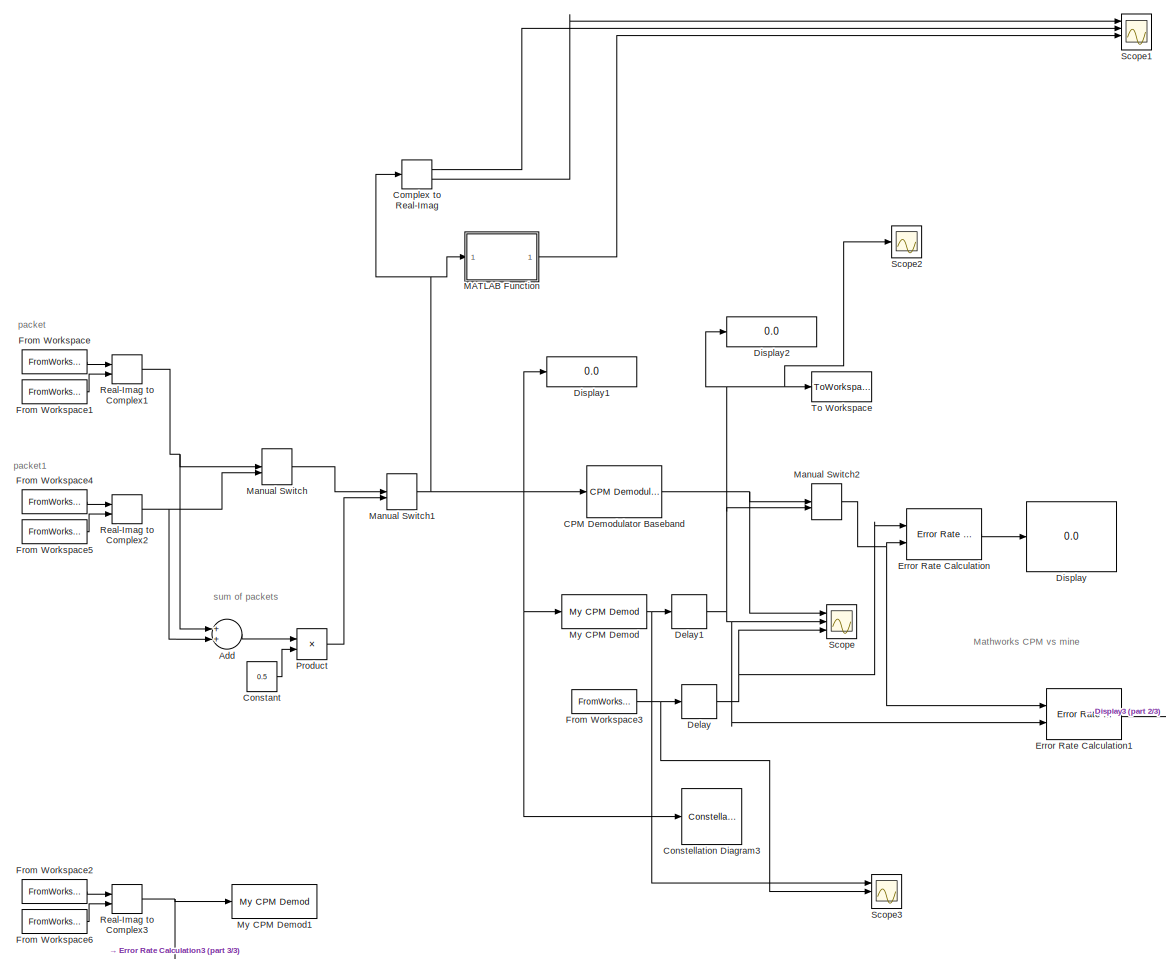
[diagram: root canvas - part 1/3, full width, top band]
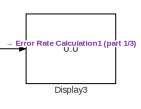
[diagram: root canvas - part 2/3, middle right region]
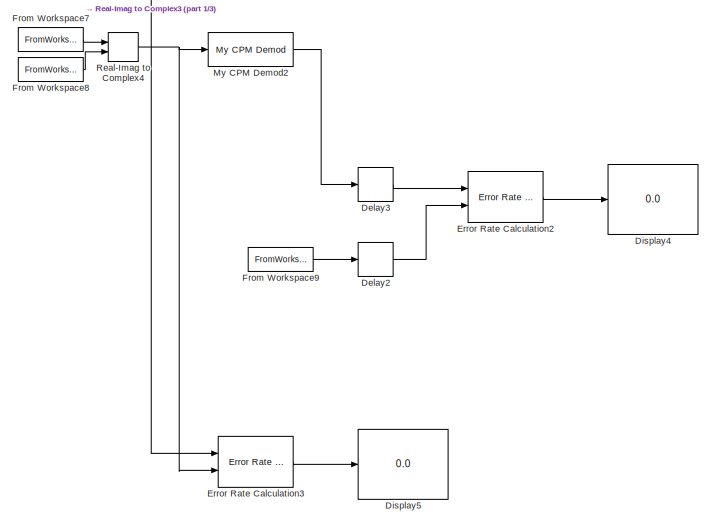
[diagram: root canvas - part 3/3, bottom left region]
MODEL slx_6c8acb5a6a5f
KIND model
BLOCK [Sum] Add
  InputSameDT = off
  OutDataTypeStr = Inherit: Inherit via internal rule
  Ports = [2, 1]
  SaturateOnIntegerOverflow = off
BLOCK [Reference] CPM Demodulator Baseband  REF=commdigbbndcpm2/CPM
Demodulator
Baseband
  BT = 0.3
  Mnum = 2
  Ports = [1, 1]
  RateOptions = Allow multirate processing
  SourceBlock = commdigbbndcpm2/CPM\nDemodulator\nBaseband
  SourceType = CPM Demodulator Baseband
  UserDataPersistent = on
  mainLobePulseLength = 1
  mappingType = Binary
  modIdx = 2
  outDType = double
  outputType = Integer
  phaseOffset = 0
  preHistory = 1
  pulseLength = 1
  pulseShape = Rectangular
  rollOff = 0.2
  samplesPerSymbol = 10
  traceBack = 16
BLOCK [ComplexToRealImag] Complex to Real-Imag
  Commented = on
  Ports = [1, 2]
BLOCK [Constant] Constant
  Value = 0.5
BLOCK [ConstellationDiagram] Constellation Diagram3
  Ports = [1]
  ScopeSpecificationString = comm.scopes.ConstellationDiagramBlockCfg('CurrentConfiguration', extmgr.ConfigurationSet(extmgr.Configuration('Core','General UI',true),extmgr.Configuration('Core','Source UI',true),extmgr.Configuration('Sources','WiredSimulink',true),extmgr.Configuration('Sources','Simulink',false),extmgr.Configuration('Sources','File',false),extmgr.Configuration('Sources','Workspace',false),extmgr.Configuration(...<+1736ch>
BLOCK [Delay] Delay
  DelayLength = 179
  InitialCondition = 0
  InputPortMap = u0
  Ports = [1, 1]
BLOCK [Delay] Delay1
  DelayLength = 17
  InitialCondition = 0
  InputPortMap = u0
  Ports = [1, 1]
BLOCK [Delay] Delay2
  Commented = on
  DelayLength = 179
  InitialCondition = 0
  InputPortMap = u0
  Ports = [1, 1]
BLOCK [Delay] Delay3
  Commented = on
  DelayLength = 17
  InitialCondition = 0
  InputPortMap = u0
  Ports = [1, 1]
BLOCK [Display] Display
  Decimation = 1
  Ports = [1]
BLOCK [Display] Display1
  Decimation = 1
  Ports = [1]
BLOCK [Display] Display2
  Decimation = 1
  Ports = [1]
BLOCK [Display] Display3
  Decimation = 1
  Ports = [1]
BLOCK [Display] Display4
  Commented = on
  Decimation = 1
  Ports = [1]
BLOCK [Display] Display5
  Commented = on
  Decimation = 1
  Ports = [1]
BLOCK [Reference] Error Rate Calculation  REF=commsink2/Error Rate
Calculation
  N = 0
  PMode = Port
  Ports = [2, 1]
  RsMode2 = off
  SourceBlock = commsink2/Error Rate\nCalculation
  SourceType = Error Rate Calculation
  WsName = ErrorVec
  cp_mode = Entire frame
  maxBits = 1e6
  numErr = 100
  st_delay = 180
  stop = off
  subframe = []
BLOCK [Reference] Error Rate Calculation1  REF=commsink2/Error Rate
Calculation
  N = 0
  PMode = Port
  Ports = [2, 1]
  RsMode2 = off
  SourceBlock = commsink2/Error Rate\nCalculation
  SourceType = Error Rate Calculation
  WsName = ErrorVec
  cp_mode = Entire frame
  maxBits = 1e6
  numErr = 100
  st_delay = 180
  stop = off
  subframe = []
BLOCK [Reference] Error Rate Calculation2  REF=commsink2/Error Rate
Calculation
  Commented = on
  N = 0
  PMode = Port
  Ports = [2, 1]
  RsMode2 = off
  SourceBlock = commsink2/Error Rate\nCalculation
  SourceType = Error Rate Calculation
  WsName = ErrorVec
  cp_mode = Entire frame
  maxBits = 1e6
  numErr = 100
  st_delay = 180
  stop = off
  subframe = []
BLOCK [Reference] Error Rate Calculation3  REF=commsink2/Error Rate
Calculation
  Commented = on
  N = 0
  PMode = Port
  Ports = [2, 1]
  RsMode2 = off
  SourceBlock = commsink2/Error Rate\nCalculation
  SourceType = Error Rate Calculation
  WsName = ErrorVec
  cp_mode = Entire frame
  maxBits = 1e6
  numErr = 100
  st_delay = 180
  stop = off
  subframe = []
BLOCK [FromWorkspace] From Workspace
  Interpolate = off
  OutDataTypeStr = double
  OutputAfterFinalValue = Setting to zero
  SampleTime = 1/(10000*10)
  VariableName = [packetDataTimeValues real(packetData)]
BLOCK [FromWorkspace] From Workspace1
  Interpolate = off
  OutDataTypeStr = double
  OutputAfterFinalValue = Setting to zero
  SampleTime = 1/(10000*10)
  VariableName = [packetDataTimeValues imag(packetData)]
BLOCK [FromWorkspace] From Workspace2
  Commented = on
  Interpolate = off
  OutDataTypeStr = double
  OutputAfterFinalValue = Setting to zero
  SampleTime = 1/(10000*10)
  VariableName = [packetDataTimeValues real(packetDataFirstGo)]
BLOCK [FromWorkspace] From Workspace3
  Interpolate = off
  OutDataTypeStr = double
  OutputAfterFinalValue = Setting to zero
  SampleTime = 1/(10000*10)
  VariableName = [packetDataTimeValues originalDataPacked]
BLOCK [FromWorkspace] From Workspace4
  Interpolate = off
  OutDataTypeStr = double
  OutputAfterFinalValue = Setting to zero
  SampleTime = 1/(10000*10)
  VariableName = [packetDataTimeValues real(packetData1)]
BLOCK [FromWorkspace] From Workspace5
  Interpolate = off
  OutDataTypeStr = double
  OutputAfterFinalValue = Setting to zero
  SampleTime = 1/(10000*10)
  VariableName = [packetDataTimeValues imag(packetData1)]
BLOCK [FromWorkspace] From Workspace6
  Commented = on
  Interpolate = off
  OutDataTypeStr = double
  OutputAfterFinalValue = Setting to zero
  SampleTime = 1/(10000*10)
  VariableName = [packetDataTimeValues imag(packetDataFirstGo)]
BLOCK [FromWorkspace] From Workspace7
  Commented = on
  Interpolate = off
  OutDataTypeStr = double
  OutputAfterFinalValue = Setting to zero
  SampleTime = 1/(10000*10)
  VariableName = [packetDataTimeValues real(packetDataRotated)]
BLOCK [FromWorkspace] From Workspace8
  Commented = on
  Interpolate = off
  OutDataTypeStr = double
  OutputAfterFinalValue = Setting to zero
  SampleTime = 1/(10000*10)
  VariableName = [packetDataTimeValues imag(packetDataRotated)]
BLOCK [FromWorkspace] From Workspace9
  Commented = on
  Interpolate = off
  OutDataTypeStr = double
  OutputAfterFinalValue = Setting to zero
  SampleTime = 1/(10000*10)
  VariableName = [packetDataTimeValues originalDataPacked]
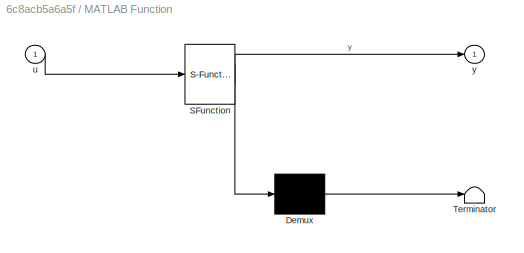
BLOCK [SubSystem] MATLAB Function
  Commented = on
  ErrorFcn = Stateflow.Translate.translate
  PermitHierarchicalResolution = ExplicitOnly
  Ports = [1, 1]
  RequestExecContextInheritance = off
  SFBlockType = MATLAB Function
  TreatAsAtomicUnit = on
BLOCK [Demux] MATLAB Function/ Demux 
  Outputs = 1
  Ports = [1, 1]
BLOCK [S-Function] MATLAB Function/ SFunction 
  EnableBusSupport = on
  FunctionName = sf_sfun
  PortCounts = [1 2]
  Ports = [1, 2]
  Tag = Stateflow S-Function demod_my_cpm 2
BLOCK [Terminator] MATLAB Function/ Terminator 
BLOCK [Inport] MATLAB Function/u
  IconDisplay = Port number
BLOCK [Outport] MATLAB Function/y
  IconDisplay = Port number
BLOCK [ManualSwitch] Manual Switch
  CurrentSetting = 0
BLOCK [ManualSwitch] Manual Switch1
BLOCK [ManualSwitch] Manual Switch2
  CurrentSetting = 0
BLOCK [Reference] My CPM Demod  REF=siglabs_lib/My CPM Demod
  Ports = [1, 1]
  RotationsPerSym = 1
  SampsPerSym = 10
  SourceBlock = siglabs_lib/My CPM Demod
BLOCK [Reference] My CPM Demod1  REF=siglabs_lib/My CPM Demod
  Commented = on
  Ports = [1, 1]
  RotationsPerSym = 1
  SampsPerSym = 10
  SourceBlock = siglabs_lib/My CPM Demod
BLOCK [Reference] My CPM Demod2  REF=siglabs_lib/My CPM Demod
  Commented = on
  Ports = [1, 1]
  RotationsPerSym = 1
  SampsPerSym = 10
  SourceBlock = siglabs_lib/My CPM Demod
BLOCK [Product] Product
  InputSameDT = off
  OutDataTypeStr = Inherit: Inherit via internal rule
  Ports = [2, 1]
  RndMeth = Floor
  SaturateOnIntegerOverflow = off
BLOCK [RealImagToComplex] Real-Imag to Complex1
  Ports = [2, 1]
BLOCK [RealImagToComplex] Real-Imag to Complex2
  Ports = [2, 1]
BLOCK [RealImagToComplex] Real-Imag to Complex3
  Commented = on
  Ports = [2, 1]
BLOCK [RealImagToComplex] Real-Imag to Complex4
  Commented = on
  Ports = [2, 1]
BLOCK [Scope] Scope
  Floating = off
  LimitDataPoints = off
  NumInputPorts = 3
  Ports = [3]
  ShowLegends = off
  TimeRange = 0.01
  YMax = 1~1~1
  YMin = -1~-1~-1
BLOCK [Scope] Scope1
  Commented = on
  Floating = off
  LimitDataPoints = off
  NumInputPorts = 4
  Ports = [4]
  SaveName = ScopeData1
  ShowLegends = off
  TimeRange = 0.001
  YMax = 1~1~5~5
  YMin = -1~-1~-5~-5
BLOCK [Scope] Scope2
  Floating = off
  NumInputPorts = 1
  Ports = [1]
  SaveName = ScopeData2
  ShowLegends = off
  TimeRange = 0.01
  YMax = 1
  YMin = -1
BLOCK [Scope] Scope3
  Floating = off
  LimitDataPoints = off
  NumInputPorts = 3
  Ports = [3]
  SaveName = ScopeData3
  ShowLegends = off
  TimeRange = 0.01
  YMax = 1~1~1
  YMin = -1~-1~-1
BLOCK [ToWorkspace] To Workspace
  Commented = on
  FixptAsFi = on
  MaxDataPoints = inf
  Ports = [1]
  SampleTime = -1
  Save2DSignal = 3-D array (concatenate along third dimension)
  VariableName = demod_out
ANNOTATION (root): Mathworks CPM vs mine
ANNOTATION (root): packet
ANNOTATION (root): packet1
ANNOTATION (root): sum of packets
LINE Add:1 -> Product:1
NET CPM Demodulator Baseband:1 -> Manual Switch2:1, Scope:1
LINE Complex to Real-Imag:1 -> Scope1:2
LINE Complex to Real-Imag:2 -> Scope1:1
LINE Constant:1 -> Product:2
NET Delay1:1 -> Display2:1, Error Rate Calculation1:2, Manual Switch2:2, Scope2:1, Scope:2, To Workspace:1
LINE Delay2:1 -> Error Rate Calculation2:2
LINE Delay3:1 -> Error Rate Calculation2:1
NET Delay:1 -> Error Rate Calculation:1, Scope:3
LINE Error Rate Calculation1:1 -> Display3:1
LINE Error Rate Calculation2:1 -> Display4:1
LINE Error Rate Calculation3:1 -> Display5:1
LINE Error Rate Calculation:1 -> Display:1
LINE From Workspace1:1 -> Real-Imag to Complex1:2
LINE From Workspace2:1 -> Real-Imag to Complex3:1
NET From Workspace3:1 -> Delay:1, Scope3:2
LINE From Workspace4:1 -> Real-Imag to Complex2:1
LINE From Workspace5:1 -> Real-Imag to Complex2:2
LINE From Workspace6:1 -> Real-Imag to Complex3:2
LINE From Workspace7:1 -> Real-Imag to Complex4:1
LINE From Workspace8:1 -> Real-Imag to Complex4:2
LINE From Workspace9:1 -> Delay2:1
LINE From Workspace:1 -> Real-Imag to Complex1:1
LINE MATLAB Function:1 -> Scope1:3
NET Manual Switch1:1 -> CPM Demodulator Baseband:1, Complex to Real-Imag:1, Constellation Diagram3:1, Display1:1, MATLAB Function:1, My CPM Demod:1
NET Manual Switch2:1 -> Error Rate Calculation1:1, Error Rate Calculation:2
LINE Manual Switch:1 -> Manual Switch1:1
LINE My CPM Demod2:1 -> Delay3:1
NET My CPM Demod:1 -> Delay1:1, Scope3:1
LINE Product:1 -> Manual Switch1:2
NET Real-Imag to Complex1:1 -> Add:1, Manual Switch:1
NET Real-Imag to Complex2:1 -> Add:2, Manual Switch:2
NET Real-Imag to Complex3:1 -> Error Rate Calculation3:1, My CPM Demod1:1
NET Real-Imag to Complex4:1 -> Error Rate Calculation3:2, My CPM Demod2:1
note: NET lines group one-source signal fan-out (src -> all destinations, sorted); 1:1 wires keep LINE
CHART MATLAB Function states=1 transitions=1
  STATE_LABEL 'eML_blk_kernel()'
  STATE_LABEL 'SCRIPT:\nfunction y = fcn(u)\n%#codegen\n\ny = angle(u);'
